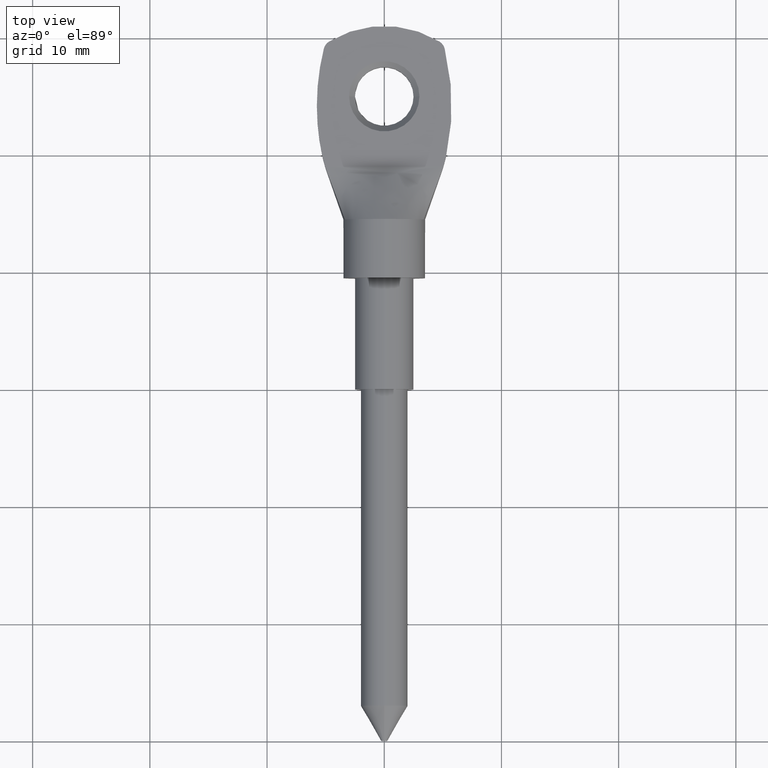
[diagram: clean part render]
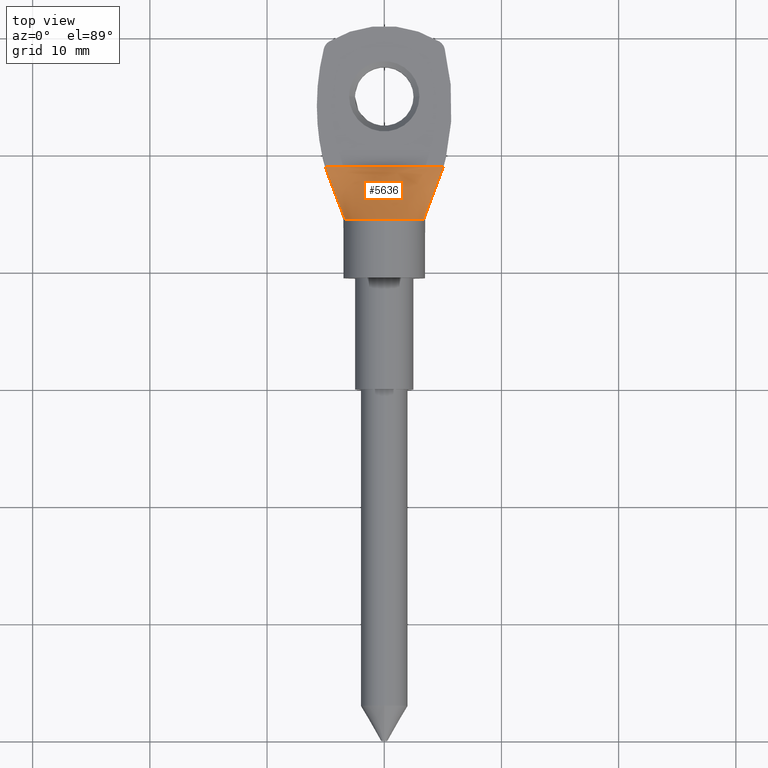
[diagram: same view with one face highlighted and labeled with its STEP entity id]
A machine part, top view. The second image highlights one B-rep face of the part: STEP entity #5636.
In plain terms, the highlighted face is a freeform B-spline surface patch.
Its self-contained STEP definition (entity closure, byte-faithful):
#368 = EDGE_CURVE ( 'NONE', #10960, #10198, #2159, .T. ) ;
#392 = EDGE_CURVE ( 'NONE', #5284, #5069, #12926, .T. ) ;
#657 = CARTESIAN_POINT ( 'NONE',  ( -2.106675668954287600, 49.00000000000000000, 1.500000000000000000 ) ) ;
#701 = CARTESIAN_POINT ( 'NONE',  ( 2.949345936536001300, 49.00000000000000000, 1.500000000000000000 ) ) ;
#749 = CARTESIAN_POINT ( 'NONE',  ( 3.370681070326859300, 49.00000000000000000, 1.500000000000000000 ) ) ;
#850 = CARTESIAN_POINT ( 'NONE',  ( -0.4213351337908589600, 48.99999999999999300, 1.500000000000000000 ) ) ;
#1026 = CARTESIAN_POINT ( 'NONE',  ( 3.355650335498186400, 44.50000000000000000, 0.9955416600269948500 ) ) ;
#1327 = CARTESIAN_POINT ( 'NONE',  ( 4.838615001930321600, 48.42470665305691600, 1.435500689912829800 ) ) ;
#1397 = CARTESIAN_POINT ( 'NONE',  ( 0.0000000000000000000, 44.50000000000000000, 0.0000000000000000000 ) ) ;
#1630 = ORIENTED_EDGE ( 'NONE', *, *, #368, .T. ) ;
#1785 = CARTESIAN_POINT ( 'NONE',  ( 1.685340535163428700, 49.00000000000000000, 1.500000000000000000 ) ) ;
#1838 = CARTESIAN_POINT ( 'NONE',  ( -2.810306425591248700, 44.50000000000000700, 2.112363302041235300 ) ) ;
#1885 = CARTESIAN_POINT ( 'NONE',  ( 2.004310823101716800, 44.49999999999999300, 2.894614775834394700 ) ) ;
#1988 = CIRCLE ( 'NONE', #5828, 3.500000000000000000 ) ;
#2159 = B_SPLINE_CURVE_WITH_KNOTS ( 'NONE', 3,
 ( #1327, #11311, #9326, #11564 ),
 .UNSPECIFIED., .F., .F.,
 ( 4, 4 ),
 ( 0.0000000000000000000, 0.0006120792476076407400 ),
 .UNSPECIFIED. ) ;
#2362 = CARTESIAN_POINT ( 'NONE',  ( 4.205733903382859600, 46.75000000000000000, 1.247740090395150800 ) ) ;
#2512 = CIRCLE ( 'NONE', #6280, 3.500000000000000000 ) ;
#2669 = LINE ( 'NONE', #2362, #4055 ) ;
#2868 = CARTESIAN_POINT ( 'NONE',  ( 14.25000000000000000, 49.00000000000000000, 1.500000000000000000 ) ) ;
#2893 = LINE ( 'NONE', #4837, #13983 ) ;
#2986 = CARTESIAN_POINT ( 'NONE',  ( -0.4354025685119515800, 44.50000000000001400, 3.500000000000001800 ) ) ;
#2987 = VERTEX_POINT ( 'NONE', #1026 ) ;
#3047 = ORIENTED_EDGE ( 'NONE', *, *, #4646, .F. ) ;
#4012 = CARTESIAN_POINT ( 'NONE',  ( 0.8426702675817135900, 49.00000000000000000, 1.500000000000000000 ) ) ;
#4055 = VECTOR ( 'NONE', #5538, 1000.000000000000100 ) ;
#4057 = CARTESIAN_POINT ( 'NONE',  ( 1.654692775434331500, 44.50000000000000700, 3.112719720967419300 ) ) ;
#4109 = CARTESIAN_POINT ( 'NONE',  ( -3.355446201275429800, 44.50000000000000000, 0.9954801807903006500 ) ) ;
#4459 = CARTESIAN_POINT ( 'NONE',  ( -4.838615001929873900, 48.42470665305572900, 1.435500689912696500 ) ) ;
#4646 = EDGE_CURVE ( 'NONE', #5284, #10198, #8929, .T. ) ;
#4837 = CARTESIAN_POINT ( 'NONE',  ( -4.205733903382859600, 46.75000000000000000, 1.247740090395150300 ) ) ;
#5069 = VERTEX_POINT ( 'NONE', #4459 ) ;
#5114 = CARTESIAN_POINT ( 'NONE',  ( 3.156929104511572200, 44.50000000000000700, 1.547158542172640800 ) ) ;
#5160 = CARTESIAN_POINT ( 'NONE',  ( 2.581771050974728300, 44.50000000000000000, 2.393849372126477500 ) ) ;
#5234 = VERTEX_POINT ( 'NONE', #7168 ) ;
#5252 = CARTESIAN_POINT ( 'NONE',  ( 5.056021605490289300, 49.00000000000000000, 1.500000000000000000 ) ) ;
#5279 = EDGE_CURVE ( 'NONE', #5069, #10090, #2893, .T. ) ;
#5284 = VERTEX_POINT ( 'NONE', #6034 ) ;
#5320 = CARTESIAN_POINT ( 'NONE',  ( -3.355623743714192500, 44.50000000000000000, 0.9955336945150837800 ) ) ;
#5538 = DIRECTION ( 'NONE',  ( 0.3515770152094535000, 0.9303301485610877600, 0.1043044440794158900 ) ) ;
#5636 = ADVANCED_FACE ( 'NONE', ( #7366 ), #11238, .T. ) ;
#5828 = AXIS2_PLACEMENT_3D ( 'NONE', #10639, #10725, #12993 ) ;
#6034 = CARTESIAN_POINT ( 'NONE',  ( -5.037407379332575100, 49.00000000000000000, 1.500000000000000000 ) ) ;
#6159 = CARTESIAN_POINT ( 'NONE',  ( 0.4354025685119506900, 44.50000000000001400, 3.500000000000001800 ) ) ;
#6201 = CARTESIAN_POINT ( 'NONE',  ( -1.685340535163430100, 48.99999999999999300, 1.500000000000000000 ) ) ;
#6280 = AXIS2_PLACEMENT_3D ( 'NONE', #1397, #10247, #6869 ) ;
#6301 = CARTESIAN_POINT ( 'NONE',  ( 2.106675668954286300, 49.00000000000000000, 1.500000000000000000 ) ) ;
#6403 = EDGE_LOOP ( 'NONE', ( #12138, #1630, #3047, #10131, #10269, #14036, #8536 ) ) ;
#6869 = DIRECTION ( 'NONE',  ( 0.0000000000000000000, 0.0000000000000000000, 1.000000000000000000 ) ) ;
#7168 = CARTESIAN_POINT ( 'NONE',  ( -2.058151519873461400E-016, 44.50000000000000700, 3.500000000000000900 ) ) ;
#7205 = EDGE_CURVE ( 'NONE', #5234, #2987, #2512, .T. ) ;
#7366 = FACE_OUTER_BOUND ( 'NONE', #6403, .T. ) ;
#7383 = CARTESIAN_POINT ( 'NONE',  ( -4.213351337908573400, 49.00000000000000000, 1.500000000000000000 ) ) ;
#7462 = EDGE_CURVE ( 'NONE', #10090, #5234, #1988, .T. ) ;
#7692 = CARTESIAN_POINT ( 'NONE',  ( 5.037407379332569800, 49.00000000000000000, 1.500000000000000000 ) ) ;
#8403 = CARTESIAN_POINT ( 'NONE',  ( -2.581771050974729100, 44.50000000000001400, 2.393849372126476200 ) ) ;
#8493 = CARTESIAN_POINT ( 'NONE',  ( -2.004310823101717300, 44.50000000000001400, 2.894614775834393400 ) ) ;
#8536 = ORIENTED_EDGE ( 'NONE', *, *, #7205, .T. ) ;
#8586 = CARTESIAN_POINT ( 'NONE',  ( 4.213351337908574300, 49.00000000000000000, 1.500000000000000000 ) ) ;
#8764 = VECTOR ( 'NONE', #14044, 1000.000000000000000 ) ;
#8929 = LINE ( 'NONE', #2868, #8764 ) ;
#9326 = CARTESIAN_POINT ( 'NONE',  ( 4.976611106475749200, 48.80631310238880600, 1.478794875305048600 ) ) ;
#9512 = CARTESIAN_POINT ( 'NONE',  ( -3.370681070326858800, 49.00000000000000000, 1.500000000000000000 ) ) ;
#9557 = CARTESIAN_POINT ( 'NONE',  ( -3.275915720535482300, 44.50000000000000700, 1.263552066734437100 ) ) ;
#9607 = CARTESIAN_POINT ( 'NONE',  ( 0.8698192022489125200, 44.49999999999999300, 3.416203565037236400 ) ) ;
#9654 = CARTESIAN_POINT ( 'NONE',  ( -1.654692775434332800, 44.50000000000000000, 3.112719720967419300 ) ) ;
#10090 = VERTEX_POINT ( 'NONE', #5320 ) ;
#10131 = ORIENTED_EDGE ( 'NONE', *, *, #392, .T. ) ;
#10198 = VERTEX_POINT ( 'NONE', #7692 ) ;
#10247 = DIRECTION ( 'NONE',  ( 0.0000000000000000000, 1.000000000000000000, 0.0000000000000000000 ) ) ;
#10269 = ORIENTED_EDGE ( 'NONE', *, *, #5279, .T. ) ;
#10516 = EDGE_CURVE ( 'NONE', #2987, #10960, #2669, .T. ) ;
#10639 = CARTESIAN_POINT ( 'NONE',  ( 0.0000000000000000000, 44.50000000000000000, 0.0000000000000000000 ) ) ;
#10682 = CARTESIAN_POINT ( 'NONE',  ( 3.275915720535483200, 44.50000000000001400, 1.263552066734438400 ) ) ;
#10718 = CARTESIAN_POINT ( 'NONE',  ( -4.634686471699430900, 49.00000000000000000, 1.500000000000000000 ) ) ;
#10725 = DIRECTION ( 'NONE',  ( 0.0000000000000000000, 1.000000000000000000, 0.0000000000000000000 ) ) ;
#10810 = CARTESIAN_POINT ( 'NONE',  ( -4.838615001929873900, 48.42470665305572900, 1.435500689912696500 ) ) ;
#10823 = CARTESIAN_POINT ( 'NONE',  ( 0.4213351337908558000, 48.99999999999999300, 1.500000000000000000 ) ) ;
#10960 = VERTEX_POINT ( 'NONE', #13618 ) ;
#11238 = B_SPLINE_SURFACE_WITH_KNOTS ( 'NONE', 3, 1, ( 
 ( #5252, #12853 ),
 ( #14075, #10682 ),
 ( #8586, #5114 ),
 ( #749, #11814 ),
 ( #701, #5160 ),
 ( #6301, #1885 ),
 ( #1785, #4057 ),
 ( #4012, #9607 ),
 ( #10823, #6159 ),
 ( #850, #2986 ),
 ( #13938, #12896 ),
 ( #6201, #9654 ),
 ( #657, #8493 ),
 ( #13986, #8403 ),
 ( #9512, #1838 ),
 ( #7383, #12943 ),
 ( #10718, #9557 ),
 ( #11869, #4109 ) ),
 .UNSPECIFIED., .F., .F., .F.,
 ( 4, 2, 2, 2, 2, 2, 2, 2, 4 ),
 ( 2, 2 ),
 ( 0.0000000000000000000, 0.1249999999999998900, 0.2499999999999998900, 0.3749999999999998900, 0.5000000000000000000, 0.6249999999999998900, 0.7499999999999998900, 0.8749999999999998900, 1.000000000000000000 ),
 ( 0.0000000000000000000, 1.000000000000000000 ),
 .UNSPECIFIED. ) ;
#11311 = CARTESIAN_POINT ( 'NONE',  ( 4.910375088311555600, 48.61459555061194500, 1.456790181527138700 ) ) ;
#11564 = CARTESIAN_POINT ( 'NONE',  ( 5.037407379332569800, 49.00000000000000000, 1.500000000000000000 ) ) ;
#11814 = CARTESIAN_POINT ( 'NONE',  ( 2.810306425591247800, 44.49999999999999300, 2.112363302041234900 ) ) ;
#11869 = CARTESIAN_POINT ( 'NONE',  ( -5.056021605490289300, 49.00000000000000000, 1.500000000000000000 ) ) ;
#11994 = CARTESIAN_POINT ( 'NONE',  ( -4.910375088311288200, 48.61459555061115600, 1.456790181527047400 ) ) ;
#12138 = ORIENTED_EDGE ( 'NONE', *, *, #10516, .T. ) ;
#12853 = CARTESIAN_POINT ( 'NONE',  ( 3.355446201275429800, 44.50000000000000000, 0.9954801807903015400 ) ) ;
#12896 = CARTESIAN_POINT ( 'NONE',  ( -0.8698192022489134000, 44.50000000000000700, 3.416203565037237800 ) ) ;
#12926 = B_SPLINE_CURVE_WITH_KNOTS ( 'NONE', 3,
 ( #13023, #14260, #11994, #10810 ),
 .UNSPECIFIED., .F., .F.,
 ( 4, 4 ),
 ( 0.0000000000000000000, 0.0006120792476089153200 ),
 .UNSPECIFIED. ) ;
#12943 = CARTESIAN_POINT ( 'NONE',  ( -3.156929104511572600, 44.50000000000000000, 1.547158542172639500 ) ) ;
#12993 = DIRECTION ( 'NONE',  ( 0.0000000000000000000, 0.0000000000000000000, 1.000000000000000000 ) ) ;
#13023 = CARTESIAN_POINT ( 'NONE',  ( -5.037407379332575100, 49.00000000000000000, 1.500000000000000000 ) ) ;
#13618 = CARTESIAN_POINT ( 'NONE',  ( 4.838615001930321600, 48.42470665305691600, 1.435500689912829800 ) ) ;
#13770 = DIRECTION ( 'NONE',  ( 0.3515770152094534500, -0.9303301485610877600, -0.1043044440794160700 ) ) ;
#13938 = CARTESIAN_POINT ( 'NONE',  ( -0.8426702675817159300, 48.99999999999999300, 1.500000000000000000 ) ) ;
#13983 = VECTOR ( 'NONE', #13770, 1000.000000000000000 ) ;
#13986 = CARTESIAN_POINT ( 'NONE',  ( -2.949345936536001700, 49.00000000000000000, 1.500000000000000000 ) ) ;
#14036 = ORIENTED_EDGE ( 'NONE', *, *, #7462, .T. ) ;
#14044 = DIRECTION ( 'NONE',  ( 1.000000000000000000, 0.0000000000000000000, -0.0000000000000000000 ) ) ;
#14075 = CARTESIAN_POINT ( 'NONE',  ( 4.634686471699431800, 49.00000000000000000, 1.500000000000000000 ) ) ;
#14260 = CARTESIAN_POINT ( 'NONE',  ( -4.976611106475622200, 48.80631310238839400, 1.478794875305004600 ) ) ;